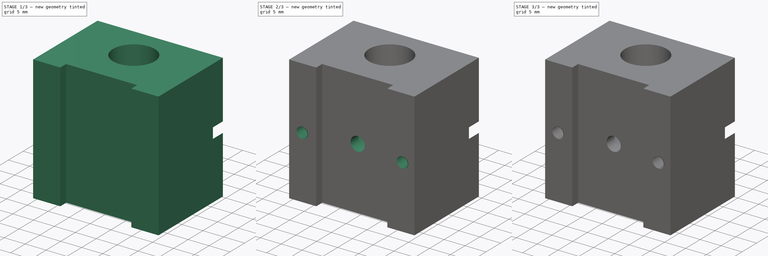
[diagram: build sequence overview — one tinted view per stage of 3, left to right]
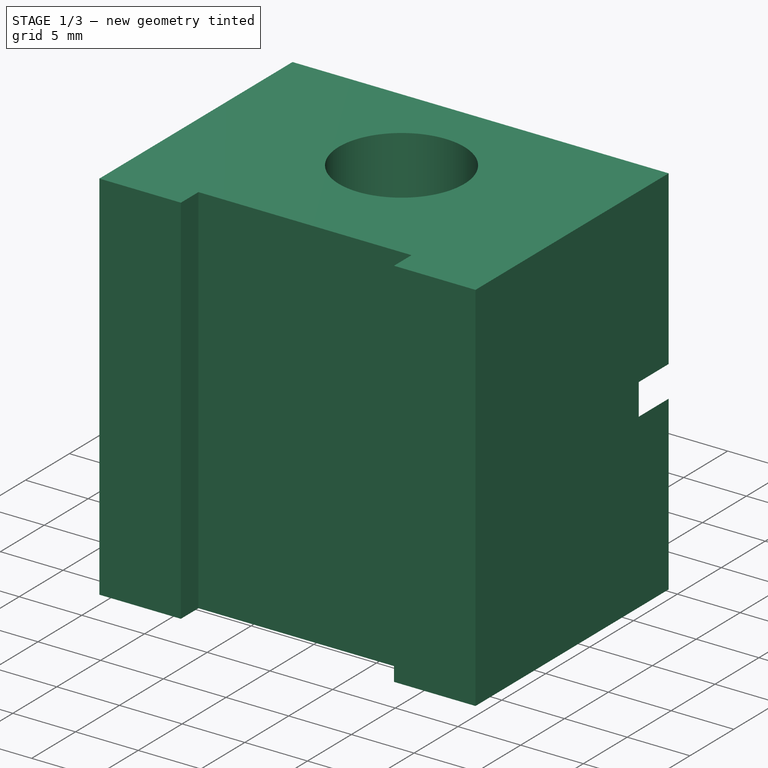
[diagram: stage 1 of 3 — iso view after this stage's code; geometry added in this stage tinted green]
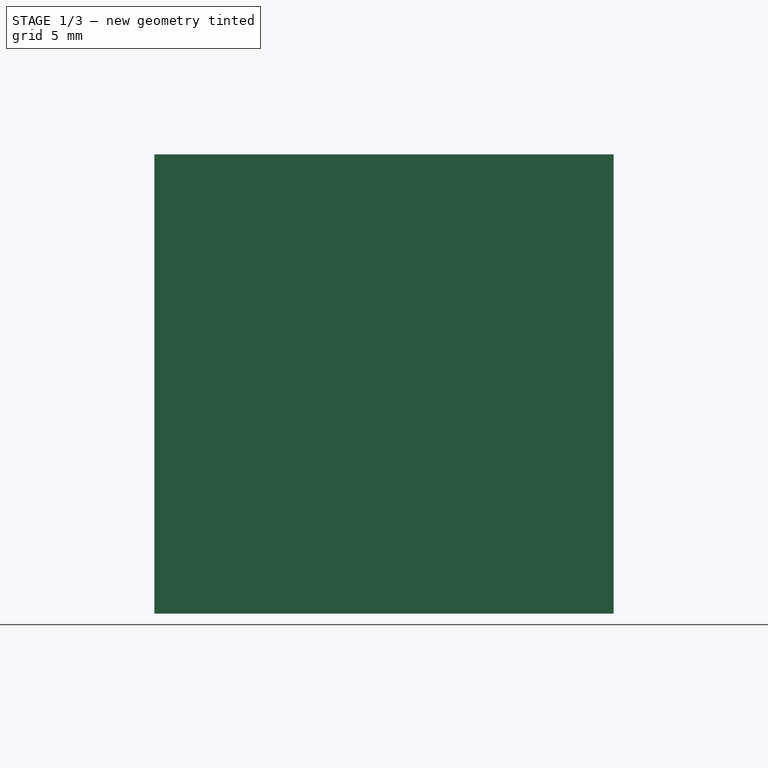
[diagram: stage 1 of 3 — front view after this stage's code; geometry added in this stage tinted green]
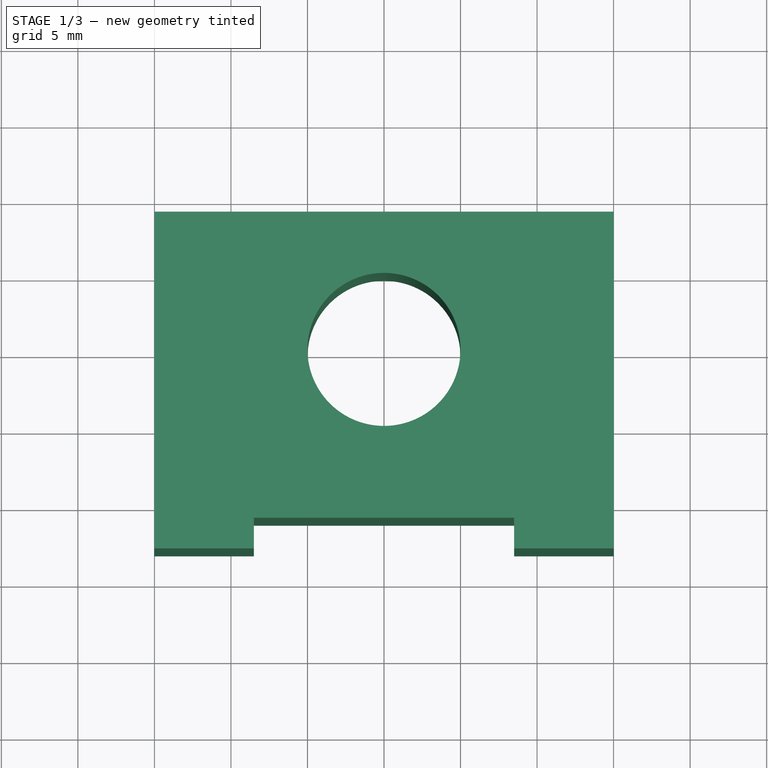
[diagram: stage 1 of 3 — top view after this stage's code; geometry added in this stage tinted green]
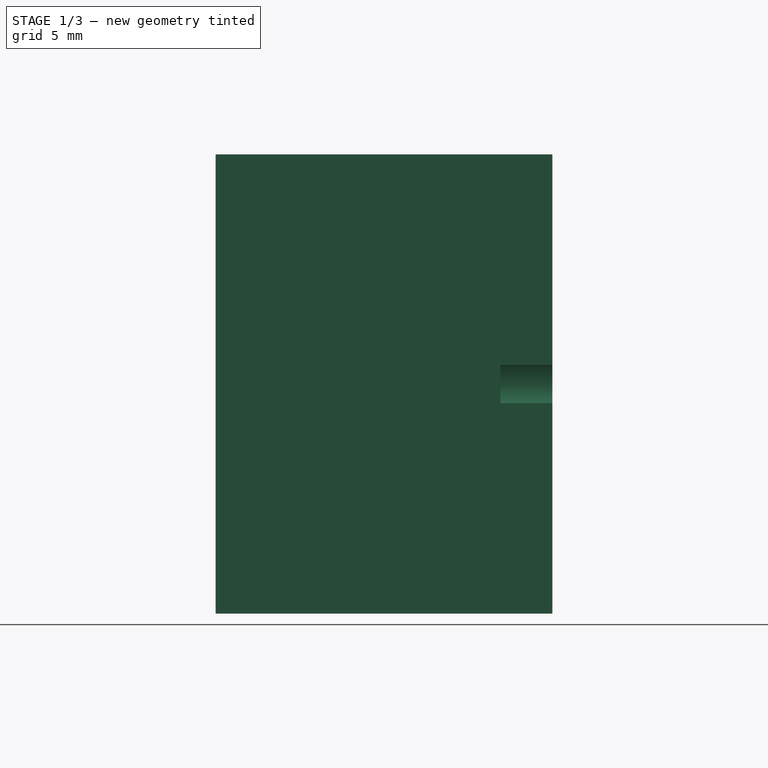
[diagram: stage 1 of 3 — right view after this stage's code; geometry added in this stage tinted green]
FCSTD DOCUMENT  (FreeCAD 0.21R33694 (Git))
Label: Holder
License: All rights reserved
LicenseURL: http://en.wikipedia.org/wiki/All_rights_reserved
objects: Sketcher::SketchObject×7, PartDesign::Plane×3, PartDesign::Hole×3, Part::FeaturePython×3, PartDesign::Pad×1, PartDesign::Pocket×1, PartDesign::Body×1, App::DocumentObjectGroup×1
note: 24 computed .brp shape members not serialized (recipe doc carries the construction recipe); baked Part::Feature solids carry a one-line shape summary decoded from their .brp

FEATURE [Sketcher::SketchObject] Sketch  label="MasterXY"
  FullyConstrained = true
  MapMode = 5
  Support = -> [XY_Plane]
  sketch-geometry (13):
    g0: LineSegment StartX=15 StartY=-13 StartZ=0 EndX=-15 EndY=-13 EndZ=0
    g1: LineSegment StartX=-15 StartY=-13 StartZ=0 EndX=-15 EndY=9 EndZ=0
    g2: LineSegment StartX=-15 StartY=9 StartZ=0 EndX=15 EndY=9 EndZ=0
    g3: LineSegment StartX=15 StartY=9 StartZ=0 EndX=15 EndY=-13 EndZ=0
    g4: Circle CenterX=0 CenterY=0 CenterZ=0 NormalX=0 NormalY=0 NormalZ=1 AngleXU=0 Radius=5
    g5: LineSegment StartX=-15 StartY=0 StartZ=0 EndX=15 EndY=0 EndZ=0
    g6: LineSegment StartX=0 StartY=-13 StartZ=0 EndX=0 EndY=-5 EndZ=0
    g7: LineSegment StartX=-3 StartY=-4 StartZ=0 EndX=3 EndY=-4 EndZ=0
    g8: LineSegment StartX=-3 StartY=-4 StartZ=0 EndX=-3 EndY=-8 EndZ=0
    g9: LineSegment StartX=-3 StartY=-8 StartZ=0 EndX=3 EndY=-8 EndZ=0
    g10: LineSegment StartX=3 StartY=-8 StartZ=0 EndX=3 EndY=-4 EndZ=0
    g11: LineSegment StartX=-12 StartY=9 StartZ=0 EndX=-12 EndY=-13 EndZ=0
    g12: LineSegment StartX=12 StartY=9 StartZ=0 EndX=12 EndY=-13 EndZ=0
  constraints (41):
    c: Coincident(g0,g1)
    c: Coincident(g1,g2)
    c: Coincident(g2,g3)
    c: Coincident(g3,g0)
    c: Horizontal(g0)
    c: Vertical(g1)
    c: Vertical(g3)
    c: DistanceX(g0,g0) = 30
    c: Coincident(g4,g-1)
    c: Radius(g4) = 5
    c: DistanceY(g-1,g2) = 9
    c: DistanceY(g0,g-1) = 13
    c: Symmetric(g2,g1,g-2)
    c: PointOnObject(g5,g1)
    c: PointOnObject(g5,g3)
    c: Horizontal(g5)
    c: PointOnObject(g5,g-1)
    c: PointOnObject(g6,g0)
    c: Vertical(g6)
    c: PointOnObject(g6,g-2)
    c: PointOnObject(g6,g4)
    c: Horizontal(g7)
    c: DistanceX(g7,g7) = 6
    c: PointOnObject(g7,g4)
    c: PointOnObject(g7,g4)
    c: Coincident(g8,g7)
    c: Vertical(g8)
    c: Coincident(g8,g9)
    c: Horizontal(g9)
    c: Coincident(g9,g10)
    c: Coincident(g10,g7)
    c: Vertical(g10)
    c: DistanceY(g8,g6) = 3
    c: PointOnObject(g11,g2)
    c: PointOnObject(g11,g0)
    c: Vertical(g11)
    c: PointOnObject(g12,g2)
    c: PointOnObject(g12,g0)
    c: Vertical(g12)
    c: DistanceX(g1,g11) = 3
    c: DistanceX(g12,g2) = 3
FEATURE [Sketcher::SketchObject] Sketch002  label="MasterXZ"
  ExternalGeometry = -> [Sketch]
  FullyConstrained = true
  MapMode = 5
  Placement = pos=(0,0,0) rot=(1,0,0;1.5708rad)
  Support = -> [XZ_Plane]
  sketch-geometry (19):
    g0: Circle CenterX=-12 CenterY=15 CenterZ=0 NormalX=0 NormalY=0 NormalZ=1 AngleXU=0 Radius=2
    g1: Circle CenterX=12 CenterY=15 CenterZ=0 NormalX=0 NormalY=0 NormalZ=1 AngleXU=0 Radius=2
    g2: Circle CenterX=-12 CenterY=15 CenterZ=0 NormalX=0 NormalY=0 NormalZ=1 AngleXU=0 Radius=3
    g3: Circle CenterX=12 CenterY=15 CenterZ=0 NormalX=0 NormalY=0 NormalZ=1 AngleXU=0 Radius=3
    g4: LineSegment StartX=-8.5 StartY=17.0207 StartZ=0 EndX=-12 EndY=19.0415 EndZ=0
    g5: LineSegment StartX=-12 StartY=19.0415 StartZ=0 EndX=-15.5 EndY=17.0207 EndZ=0
    g6: LineSegment StartX=-15.5 StartY=17.0207 StartZ=0 EndX=-15.5 EndY=12.9793 EndZ=0
    g7: LineSegment StartX=-15.5 StartY=12.9793 StartZ=0 EndX=-12 EndY=10.9585 EndZ=0
    g8: LineSegment StartX=-12 StartY=10.9585 StartZ=0 EndX=-8.5 EndY=12.9793 EndZ=0
    g9: LineSegment StartX=-8.5 StartY=12.9793 StartZ=0 EndX=-8.5 EndY=17.0207 EndZ=0
    g10: Circle CenterX=-12 CenterY=15 CenterZ=0 NormalX=0 NormalY=0 NormalZ=1 AngleXU=0 Radius=4.04145
    g11: LineSegment StartX=12 StartY=19.0415 StartZ=0 EndX=8.5 EndY=17.0207 EndZ=0
    g12: LineSegment StartX=8.5 StartY=17.0207 StartZ=0 EndX=8.5 EndY=12.9793 EndZ=0
    g13: LineSegment StartX=8.5 StartY=12.9793 StartZ=0 EndX=12 EndY=10.9585 EndZ=0
    g14: LineSegment StartX=12 StartY=10.9585 StartZ=0 EndX=15.5 EndY=12.9793 EndZ=0
    g15: LineSegment StartX=15.5 StartY=12.9793 StartZ=0 EndX=15.5 EndY=17.0207 EndZ=0
    g16: LineSegment StartX=15.5 StartY=17.0207 StartZ=0 EndX=12 EndY=19.0415 EndZ=0
    g17: Circle CenterX=12 CenterY=15 CenterZ=0 NormalX=0 NormalY=0 NormalZ=1 AngleXU=0 Radius=4.04145
    g18: LineSegment StartX=-12 StartY=15 StartZ=0 EndX=12 EndY=15 EndZ=0
  constraints (44):
    c: Equal(g1,g0)
    c: Diameter(g1) = 4
    c: Coincident(g2,g0)
    c: Coincident(g3,g1)
    c: Equal(g3,g2)
    c: Diameter(g3) = 6
    c: Coincident(g4,g5)
    c: Coincident(g5,g6)
    c: Coincident(g6,g7)
    c: Coincident(g7,g8)
    c: Coincident(g8,g9)
    c: Coincident(g9,g4)
    c: Equal(g4, g5-g9) x5
    c: PointOnObject(g4,g10)
    c: PointOnObject(g5,g10)
    c: PointOnObject(g6,g10)
    c: PointOnObject(g7,g10)
    c: PointOnObject(g8,g10)
    c: PointOnObject(g9,g10)
    c: Coincident(g10,g0)
    c: Vertical(g9)
    c: DistanceX(g5,g4) = 7
    c: Coincident(g11,g12)
    c: Coincident(g12,g13)
    c: Coincident(g13,g14)
    c: Coincident(g14,g15)
    c: Coincident(g15,g16)
    c: Coincident(g16,g11)
    c: Equal(g11, g12-g16) x5
    c: PointOnObject(g11,g17)
    c: PointOnObject(g12,g17)
    c: PointOnObject(g13,g17)
    c: PointOnObject(g14,g17)
    c: PointOnObject(g15,g17)
    c: PointOnObject(g16,g17)
    c: Coincident(g17,g1)
    c: Vertical(g15)
    c: DistanceX(g11,g15) = 7
    c: Vertical(g-4,g1)
    c: Vertical(g-3,g0)
    c: Coincident(g18,g0)
    c: Coincident(g18,g1)
    c: Horizontal(g18)
    c: DistanceY(g-3,g0) = 15
FEATURE [Sketcher::SketchObject] Sketch006
  AttachmentOffset = pos=(0,0,4) rot=(0,0,1;0rad)
  ExternalGeometry = -> [Sketch002]
  FullyConstrained = true
  MapMode = 5
  Placement = pos=(0,-4,-9e-16) rot=(1,0,0;1.5708rad)
  Support = -> [XZ_Plane]
  sketch-geometry (2):
    g0: LineSegment StartX=-12 StartY=15 StartZ=0 EndX=12 EndY=15 EndZ=0
    g1: Circle CenterX=0 CenterY=15 CenterZ=0 NormalX=0 NormalY=0 NormalZ=1 AngleXU=0 Radius=2
  constraints (5):
    c: Coincident(g0,g-3)
    c: Coincident(g0,g-4)
    c: PointOnObject(g1,g0)
    c: Equal(g1,g-4)
    c: PointOnObject(g1,g-2)
FEATURE [PartDesign::Plane] DatumPlane  label="Cut plane"
  Length = 60.4881
  MapMode = 5
  Placement = pos=(0,0,0) rot=(1,0,0;1.5708rad)
  ResizeMode = 0
  Support = -> [XZ_Plane]
  Width = 65.4881
FEATURE [Sketcher::SketchObject] Sketch009
  ExternalGeometry = -> [Sketch]
  FullyConstrained = true
  MapMode = 5
  Support = -> [XY_Plane]
  sketch-geometry (5):
    g0: Circle CenterX=0 CenterY=0 CenterZ=0 NormalX=0 NormalY=0 NormalZ=1 AngleXU=0 Radius=5
    g1: LineSegment StartX=-15 StartY=9 StartZ=0 EndX=15 EndY=9 EndZ=0
    g2: LineSegment StartX=15 StartY=9 StartZ=0 EndX=15 EndY=-13 EndZ=0
    g3: LineSegment StartX=-15 StartY=9 StartZ=0 EndX=-15 EndY=-13 EndZ=0
    g4: LineSegment StartX=-15 StartY=-13 StartZ=0 EndX=15 EndY=-13 EndZ=0
  constraints (10):
    c: Coincident(g0,g-7)
    c: Coincident(g-4,g1)
    c: Coincident(g1,g-5)
    c: Coincident(g1,g2)
    c: Coincident(g2,g-6)
    c: Coincident(g1,g3)
    c: Coincident(g3,g-6)
    c: Coincident(g3,g4)
    c: Coincident(g4,g2)
    c: Equal(g0,g-7)
FEATURE [PartDesign::Pad] Pad
  Direction = (0,0,1)
  Length = 30
  Length2 = 10
  Profile = -> Sketch009
  ReferenceAxis = -> Sketch009 [N_Axis]
  Type = 0
FEATURE [PartDesign::Plane] DatumPlane001  label="Top"
  Length = 60.4881
  MapMode = 5
  Placement = pos=(0,9,0) rot=(0,0.707107,0.707107;3.14159rad)
  ResizeMode = 0
  Support = -> [Pad]
  Width = 65.4881
FEATURE [Sketcher::SketchObject] Sketch003
  ExternalGeometry = -> [Sketch002]
  FullyConstrained = true
  MapMode = 5
  Placement = pos=(0,9,0) rot=(0,0.707107,0.707107;3.14159rad)
  Support = -> [DatumPlane001]
  sketch-geometry (2):
    g0: Circle CenterX=12 CenterY=15 CenterZ=0 NormalX=0 NormalY=0 NormalZ=1 AngleXU=0 Radius=2
    g1: Circle CenterX=-12 CenterY=15 CenterZ=0 NormalX=0 NormalY=0 NormalZ=1 AngleXU=0 Radius=2
  constraints (4):
    c: Coincident(g0,g-3)
    c: Equal(g0,g-3)
    c: Coincident(g1,g-4)
    c: Equal(g1,g-4)
FEATURE [PartDesign::Plane] DatumPlane002  label="Bottom"
  Length = 60.4881
  MapMode = 5
  Placement = pos=(0,-13,0) rot=(1,0,0;1.5708rad)
  ResizeMode = 0
  Support = -> [Pad]
  Width = 65.4881
FEATURE [Sketcher::SketchObject] Sketch008
  ExternalGeometry = -> [Sketch006]
  FullyConstrained = true
  MapMode = 5
  Placement = pos=(0,-13,0) rot=(1,0,0;1.5708rad)
  Support = -> [DatumPlane002]
  sketch-geometry (4):
    g0: LineSegment StartX=-8.5 StartY=30 StartZ=0 EndX=8.5 EndY=30 EndZ=0
    g1: LineSegment StartX=8.5 StartY=30 StartZ=0 EndX=8.5 EndY=3.6e-15 EndZ=0
    g2: LineSegment StartX=8.5 StartY=3.6e-15 StartZ=0 EndX=-8.5 EndY=3.6e-15 EndZ=0
    g3: LineSegment StartX=-8.5 StartY=3.6e-15 StartZ=0 EndX=-8.5 EndY=30 EndZ=0
  constraints (11):
    c: Coincident(g0,g1)
    c: Coincident(g1,g2)
    c: Coincident(g2,g3)
    c: Coincident(g3,g0)
    c: Horizontal(g0)
    c: Horizontal(g2)
    c: Vertical(g1)
    c: Vertical(g3)
    c: Symmetric(g0,g2,g-3)
    c: DistanceY(g1,g1) = 30
    c: DistanceX(g0,g0) = 17
FEATURE [PartDesign::Pocket] Pocket
  BaseFeature = -> Pad
  Direction = (0,1,-2e-16)
  Length = 2
  Length2 = 5
  Profile = -> Sketch008
  ReferenceAxis = -> Sketch008 [N_Axis]
  Type = 0
FEATURE [PartDesign::Hole] Hole
  BaseFeature = -> Pocket
  CustomThreadClearance = 0
  Depth = 9
  DepthType = 0
  Diameter = 3.4
  DrillForDepth = false
  DrillPoint = 0
  DrillPointAngle = 118
  HoleCutCountersinkAngle = 90
  HoleCutCustomValues = false
  HoleCutDepth = 3.4
  HoleCutDiameter = 6.5
  HoleCutType = 1
  ModelThread = false
  Profile = -> Sketch003
  Tapered = false
  TaperedAngle = 90
  ThreadClass = 0
  ThreadDepth = 9
  ThreadDepthType = 0
  ThreadDirection = 0
  ThreadFit = 0
  ThreadSize = 9
  ThreadType = 1
  Threaded = false
  UseCustomThreadClearance = false
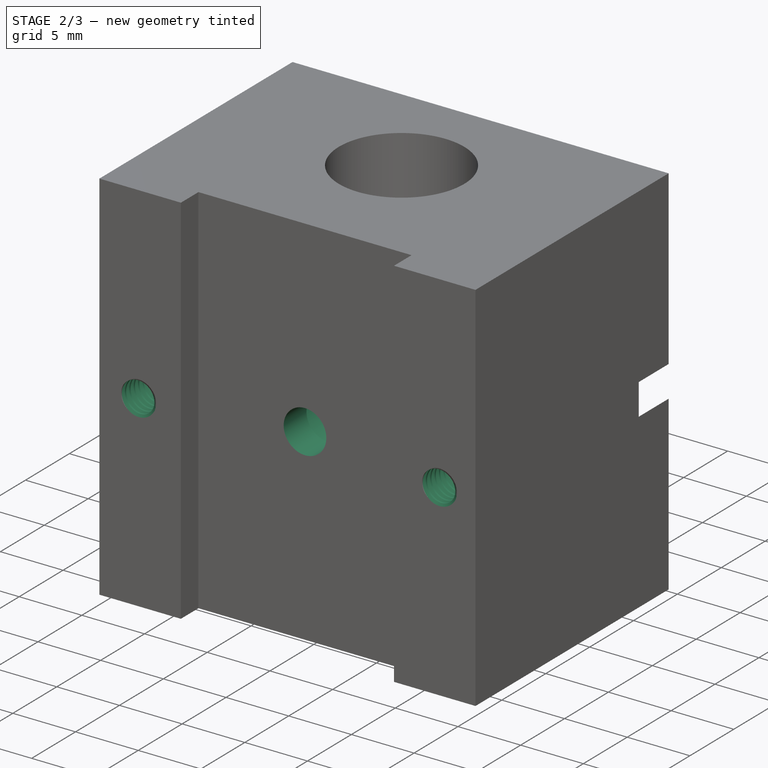
[diagram: stage 2 of 3 — iso view after this stage's code; geometry added in this stage tinted green]
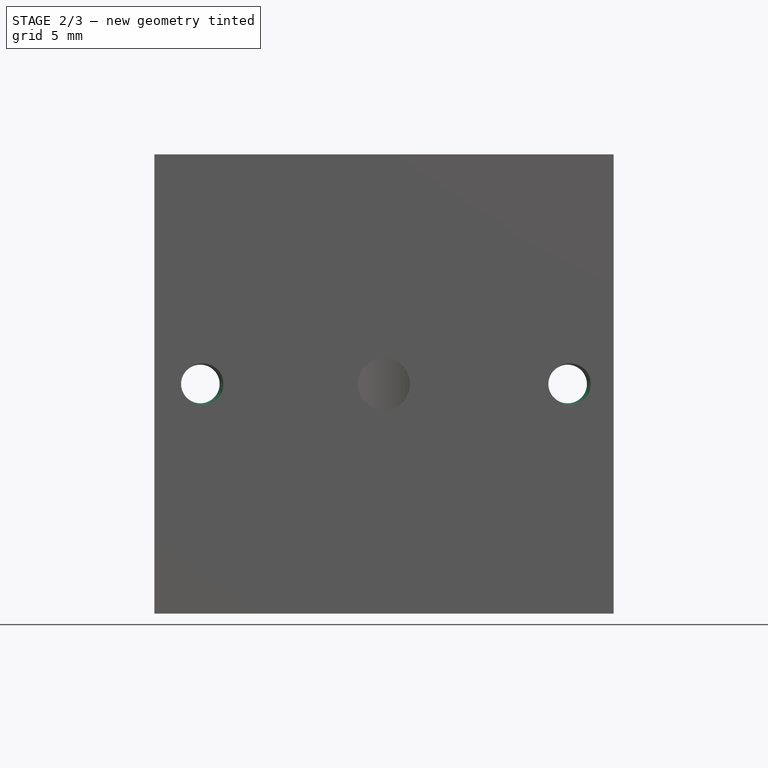
[diagram: stage 2 of 3 — front view after this stage's code; geometry added in this stage tinted green]
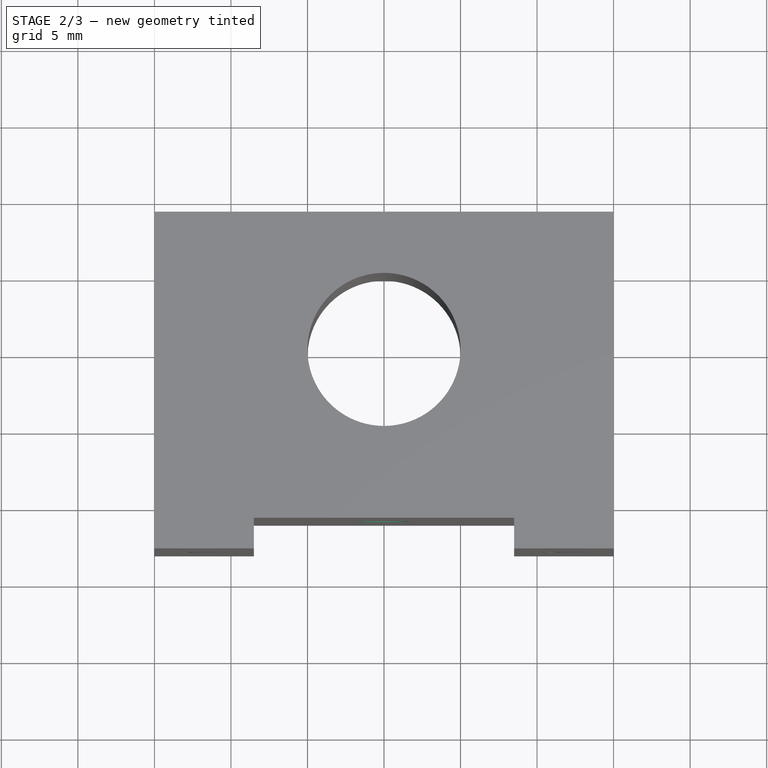
[diagram: stage 2 of 3 — top view after this stage's code; geometry added in this stage tinted green]
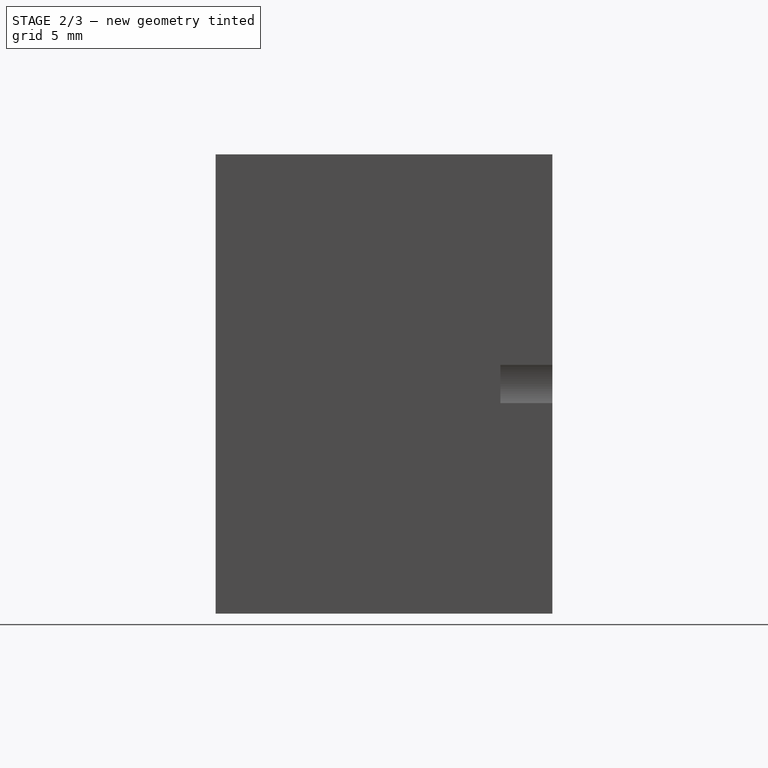
[diagram: stage 2 of 3 — right view after this stage's code; geometry added in this stage tinted green]
FEATURE [Sketcher::SketchObject] Sketch010
  ExternalGeometry = -> [Sketch002]
  FullyConstrained = true
  MapMode = 5
  Placement = pos=(0,-13,0) rot=(1,0,0;1.5708rad)
  Support = -> [DatumPlane002]
  sketch-geometry (2):
    g0: Circle CenterX=-12 CenterY=15 CenterZ=0 NormalX=0 NormalY=0 NormalZ=1 AngleXU=0 Radius=2
    g1: Circle CenterX=12 CenterY=15 CenterZ=0 NormalX=0 NormalY=0 NormalZ=1 AngleXU=0 Radius=2
  constraints (4):
    c: Coincident(g0,g-3)
    c: Coincident(g1,g-4)
    c: Equal(g-4,g1)
    c: Equal(g-3,g0)
FEATURE [PartDesign::Hole] Hole001
  BaseFeature = -> Hole
  CustomThreadClearance = 0
  Depth = 15
  DepthType = 0
  Diameter = 2.52
  DrillForDepth = false
  DrillPoint = 1
  DrillPointAngle = 118
  HoleCutCountersinkAngle = 90
  HoleCutCustomValues = false
  HoleCutDepth = 0
  HoleCutDiameter = 6.1
  HoleCutType = 0
  ModelThread = true
  Profile = -> Sketch010
  Tapered = false
  TaperedAngle = 90
  ThreadClass = 0
  ThreadDepth = 15
  ThreadDepthType = 0
  ThreadDirection = 0
  ThreadFit = 0
  ThreadSize = 9
  ThreadType = 1
  Threaded = true
  UseCustomThreadClearance = false
FEATURE [PartDesign::Hole] Hole002
  BaseFeature = -> Hole001
  CustomThreadClearance = 0
  Depth = 96.5382
  DepthType = 1
  Diameter = 3.4
  DrillForDepth = false
  DrillPoint = 1
  DrillPointAngle = 118
  HoleCutCountersinkAngle = 90
  HoleCutCustomValues = false
  HoleCutDepth = 4.4
  HoleCutDiameter = 6.5
  HoleCutType = 1
  ModelThread = false
  Profile = -> Sketch006
  Reversed = true
  Tapered = false
  TaperedAngle = 90
  ThreadClass = 0
  ThreadDepth = 96.5382
  ThreadDepthType = 0
  ThreadDirection = 0
  ThreadFit = 0
  ThreadSize = 9
  ThreadType = 1
  Threaded = false
  UseCustomThreadClearance = false
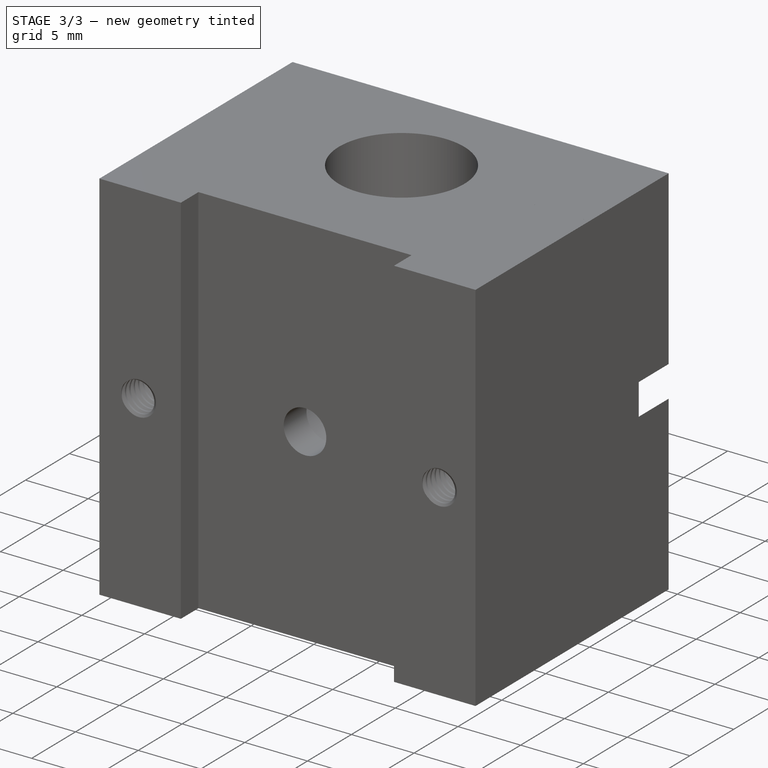
[diagram: stage 3 of 3 — iso view after this stage's code; geometry added in this stage tinted green]
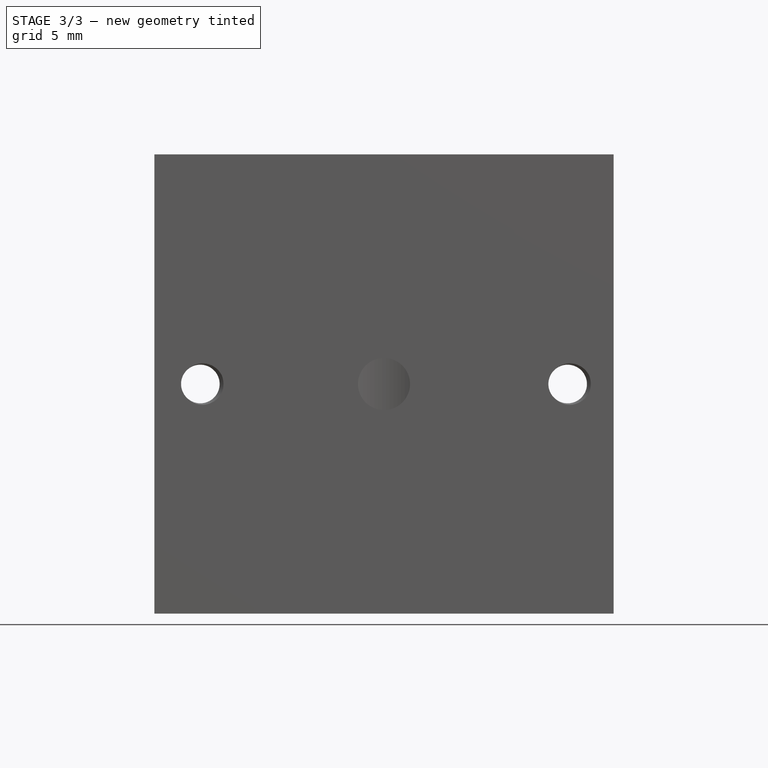
[diagram: stage 3 of 3 — front view after this stage's code; geometry added in this stage tinted green]
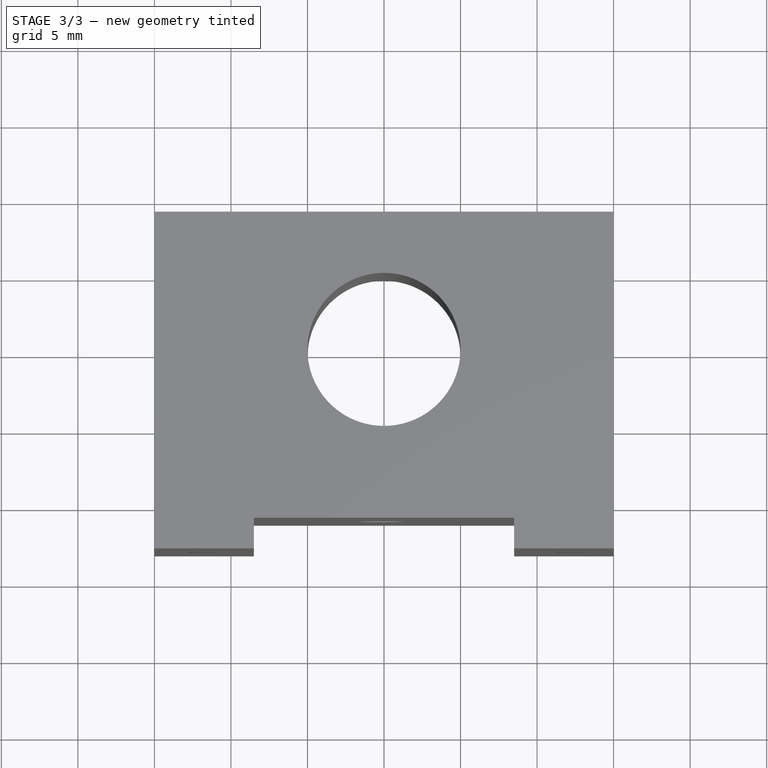
[diagram: stage 3 of 3 — top view after this stage's code; geometry added in this stage tinted green]
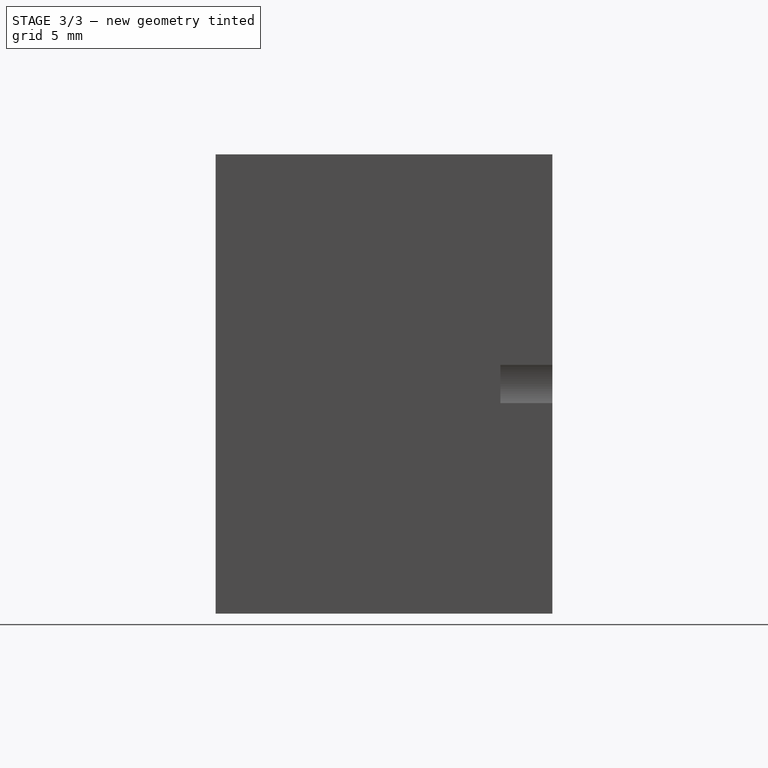
[diagram: stage 3 of 3 — right view after this stage's code; geometry added in this stage tinted green]
FEATURE [PartDesign::Body] Body
  Group = -> [Sketch,Sketch002,Sketch003,Sketch006,Sketch008,DatumPlane,Sketch009,Pad,DatumPlane001,DatumPlane002,Pocket,Hole,Sketch010,Hole001,Hole002]
  Origin = -> Origin
  Tip = -> Hole002
FEATURE [Part::FeaturePython] Slice  # WARN: FeaturePython — macro-defined, semantics opaque (R4)
  Base = -> Hole002
  Mode = 1
  Tolerance = 0
  Tools = -> [DatumPlane]
FEATURE [Part::FeaturePython] Slice_child0  label="Slice.0"  # WARN: FeaturePython — macro-defined, semantics opaque (R4)
  Base = -> Slice
  FilterType = 1
  Invert = false
  OverrideMaxVal = 0
  WindowFrom = 80
  WindowTo = 100
  items = 0
FEATURE [Part::FeaturePython] Slice_child1  label="Slice.1"  # WARN: FeaturePython — macro-defined, semantics opaque (R4)
  Base = -> Slice
  FilterType = 1
  Invert = false
  OverrideMaxVal = 0
  WindowFrom = 80
  WindowTo = 100
  items = 1
FEATURE [App::DocumentObjectGroup] GrExplode_Slice  label="Exploded Slice"
  Group = -> [Slice_child0,Slice_child1]
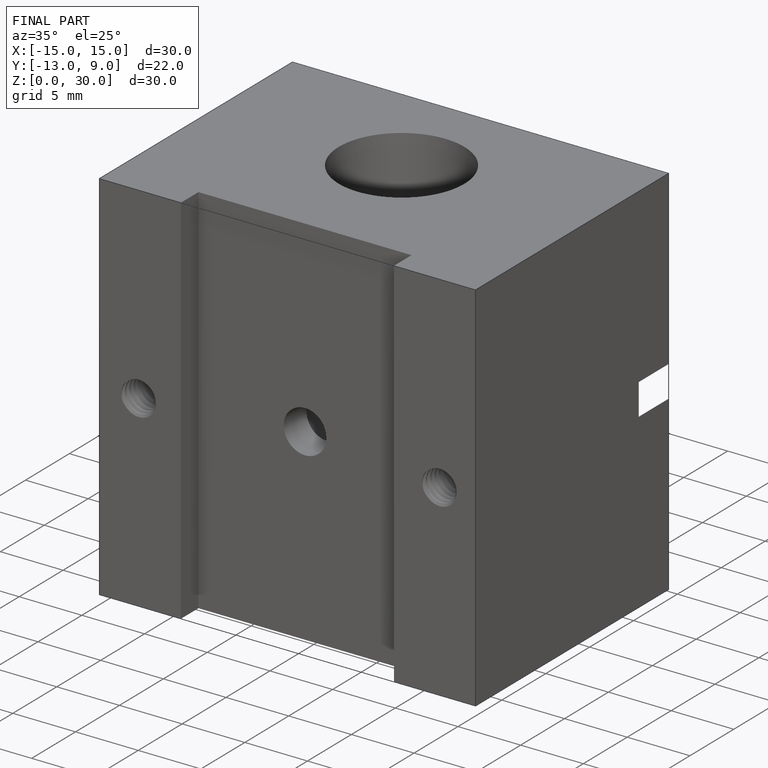
[diagram: finished part — iso view with bounding-box wireframe]
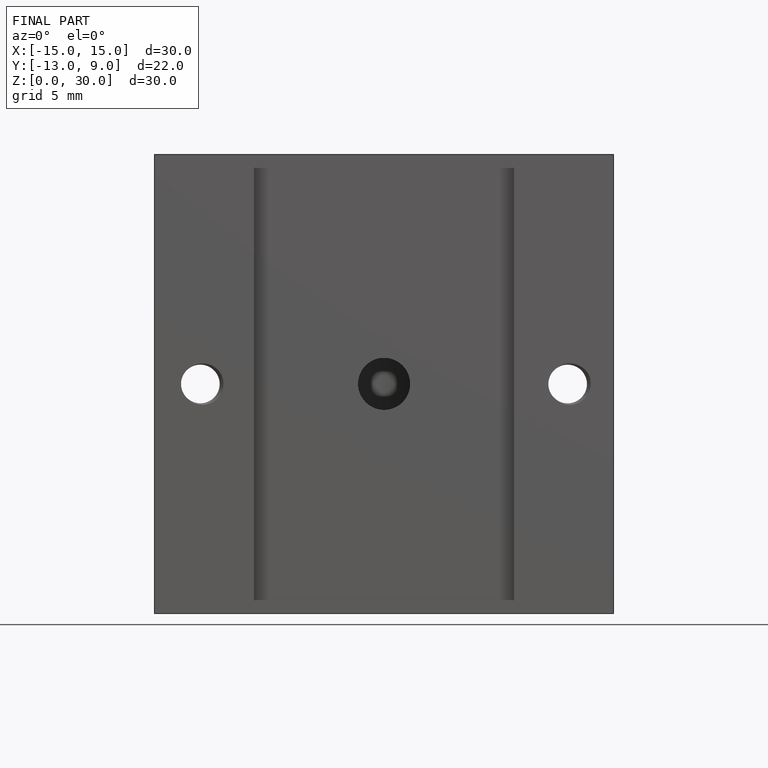
[diagram: finished part — front view with bounding-box wireframe]
